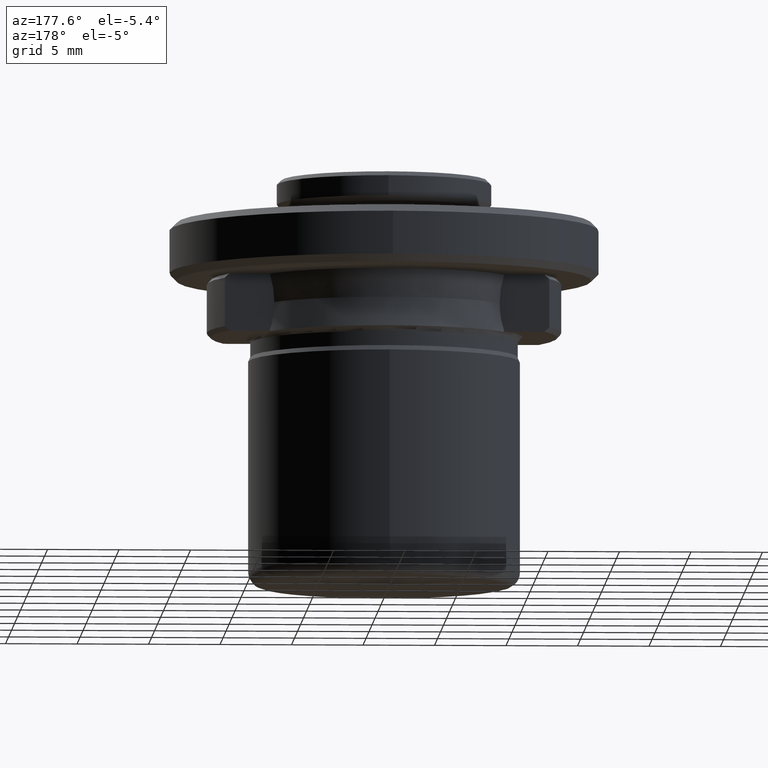
[diagram: clean part render]
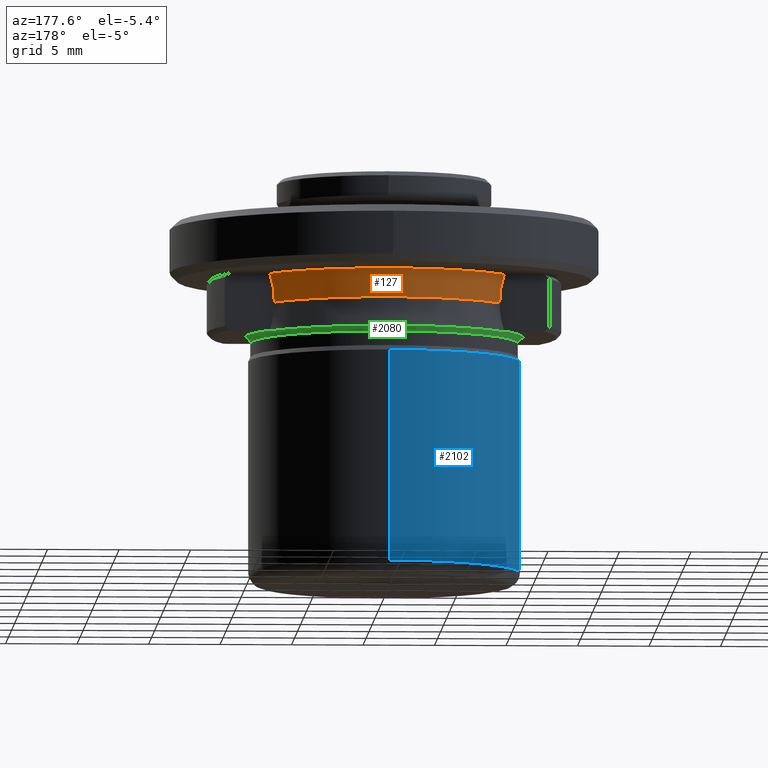
[diagram: same view with three faces highlighted in distinct colors, each labeled with its STEP entity id]
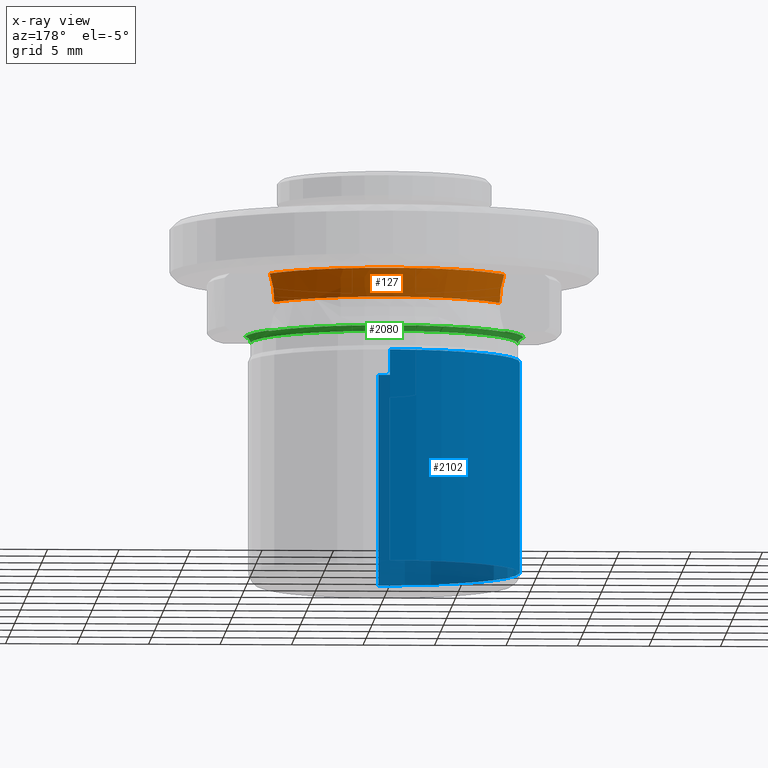
[diagram: x-ray of the same camera — body ghosted, the three highlighted faces saturated]
A machine part, auxiliary view with three faces highlighted in distinct colors.
The next image is the same camera in x-ray (body ghosted, the three faces saturated) — at least one of them is partly hidden behind the body in this view.
Their STEP definitions:

[orange] entity #127 — the highlighted face is a freeform B-spline surface patch.
#9 = CARTESIAN_POINT ( 'NONE',  ( 8.196975814546172900, 5.000000003314001500, 8.750000000509832200 ) ) ;
#11 = VERTEX_POINT ( 'NONE', #199 ) ;
#127 = ADVANCED_FACE ( 'NONE', ( #1291 ), #490, .F. ) ;
#130 = CARTESIAN_POINT ( 'NONE',  ( -7.877112415001547200, 5.000000000000000000, 7.429352586293858500 ) ) ;
#199 = CARTESIAN_POINT ( 'NONE',  ( 8.196975814546172900, 5.000000003314001500, 8.750000000509832200 ) ) ;
#203 = CARTESIAN_POINT ( 'NONE',  ( 7.877112416672512800, 4.999999997048595500, 6.749999999319589600 ) ) ;
#282 = ORIENTED_EDGE ( 'NONE', *, *, #1790, .T. ) ;
#305 = CARTESIAN_POINT ( 'NONE',  ( 8.056392546000001400, 4.779540785000001800, 6.001249375000001300 ) ) ;
#345 = B_SPLINE_CURVE_WITH_KNOTS ( 'NONE', 3,
 ( #969, #1137, #130, #1307 ),
 .UNSPECIFIED., .F., .F.,
 ( 4, 4 ),
 ( 5.980985295301940700E-013, 0.002031991267083052600 ),
 .UNSPECIFIED. ) ;
#369 = ORIENTED_EDGE ( 'NONE', *, *, #446, .F. ) ;
#438 = CARTESIAN_POINT ( 'NONE',  ( -7.877112416672511100, 4.999999997048597300, 6.749999999319589600 ) ) ;
#446 = EDGE_CURVE ( 'NONE', #990, #717, #654, .T. ) ;
#490 =( BOUNDED_SURFACE ( )  B_SPLINE_SURFACE ( 3, 3, ( 
 ( #305, #1250, #1640, #510 ),
 ( #1089, #1702, #986, #1042 ),
 ( #538, #1677, #1717, #1544 ),
 ( #1861, #2058, #2173, #528 ) ),
 .UNSPECIFIED., .F., .F., .F. ) 
 B_SPLINE_SURFACE_WITH_KNOTS ( ( 4, 4 ),
 ( 4, 4 ),
 ( 0.0000000000000000000, 1.000000000000000000 ),
 ( 0.0000000000000000000, 1.000000000000000000 ),
 .UNSPECIFIED. ) 
 GEOMETRIC_REPRESENTATION_ITEM ( )  RATIONAL_B_SPLINE_SURFACE ( (
 ( 1.000000000000000000, 0.6734850439786470600, 0.6734850439786470600, 1.000000000000000000),
 ( 0.9816814431953340100, 0.6611477699434310500, 0.6611477699434310500, 0.9816814431953340100),
 ( 0.9816814431953340100, 0.6611477699434310500, 0.6611477699434310500, 0.9816814431953340100),
 ( 1.000000000000000000, 0.6734850439786470600, 0.6734850439786470600, 1.000000000000000000) ) ) 
 REPRESENTATION_ITEM ( '' )  SURFACE ( )  );
#510 = CARTESIAN_POINT ( 'NONE',  ( -8.056392546000001400, 4.779540785000001800, 6.001249375000001300 ) ) ;
#528 = CARTESIAN_POINT ( 'NONE',  ( -8.460519829000002500, 5.019293605000001400, 9.461645811000002100 ) ) ;
#538 = CARTESIAN_POINT ( 'NONE',  ( 8.091804077999999100, 4.800549054000000200, 8.356088229000002700 ) ) ;
#541 = B_SPLINE_CURVE_WITH_KNOTS ( 'NONE', 3,
 ( #2049, #867, #1205, #203 ),
 .UNSPECIFIED., .F., .F.,
 ( 4, 4 ),
 ( 2.261502033258373100E-013, 0.002031991267083054800 ),
 .UNSPECIFIED. ) ;
#629 = EDGE_LOOP ( 'NONE', ( #369, #1445, #282, #1594 ) ) ;
#654 =( BOUNDED_CURVE ( )  B_SPLINE_CURVE ( 3, ( #438, #790, #1267, #783 ),
 .UNSPECIFIED., .F., .F. ) 
 B_SPLINE_CURVE_WITH_KNOTS ( ( 4, 4 ),
 ( 0.0000000000000000000, 1.000000000000000000 ),
 .UNSPECIFIED. ) 
 CURVE ( )  GEOMETRIC_REPRESENTATION_ITEM ( )  RATIONAL_B_SPLINE_CURVE ( ( 0.9738585525977352400, 0.6725504043378097700, 0.6725504043378099900, 0.9738585525977354600 ) ) 
 REPRESENTATION_ITEM ( '' )  );
#698 = VERTEX_POINT ( 'NONE', #1146 ) ;
#717 = VERTEX_POINT ( 'NONE', #1487 ) ;
#783 = CARTESIAN_POINT ( 'NONE',  ( 7.877112416672512800, 4.999999997048595500, 6.749999999319589600 ) ) ;
#790 = CARTESIAN_POINT ( 'NONE',  ( -3.802041327538604200, 11.41995861482380700, 6.749999999011319800 ) ) ;
#867 = CARTESIAN_POINT ( 'NONE',  ( 7.987554438062074000, 5.000000000000002700, 8.103832764914706400 ) ) ;
#919 = EDGE_CURVE ( 'NONE', #11, #717, #541, .T. ) ;
#955 =( BOUNDED_CURVE ( )  B_SPLINE_CURVE ( 3, ( #1848, #1005, #1016, #9 ),
 .UNSPECIFIED., .F., .F. ) 
 B_SPLINE_CURVE_WITH_KNOTS ( ( 4, 4 ),
 ( 0.0000000000000000000, 0.01955758531167859200 ),
 .UNSPECIFIED. ) 
 CURVE ( )  GEOMETRIC_REPRESENTATION_ITEM ( )  RATIONAL_B_SPLINE_CURVE ( ( 0.9839124906199209200, 0.6695507562702077700, 0.6695507562702069900, 0.9839124906199190300 ) ) 
 REPRESENTATION_ITEM ( '' )  );
#969 = CARTESIAN_POINT ( 'NONE',  ( -8.196975812969103700, 5.000000000442648600, 8.750000000509832200 ) ) ;
#986 = CARTESIAN_POINT ( 'NONE',  ( -3.937024453000000300, 11.49113273000000000, 7.181098635999998900 ) ) ;
#990 = VERTEX_POINT ( 'NONE', #1404 ) ;
#1005 = CARTESIAN_POINT ( 'NONE',  ( -4.015183221453917800, 11.85561054469040200, 8.750000000000001800 ) ) ;
#1016 = CARTESIAN_POINT ( 'NONE',  ( 4.015183221453870700, 11.85561054469042100, 8.750000000000001800 ) ) ;
#1042 = CARTESIAN_POINT ( 'NONE',  ( -7.954581259999998500, 4.719140153000001400, 7.181098635999999800 ) ) ;
#1089 = CARTESIAN_POINT ( 'NONE',  ( 7.954581259999998500, 4.719140153000001400, 7.181098635999999800 ) ) ;
#1137 = CARTESIAN_POINT ( 'NONE',  ( -7.987554438100409500, 5.000000000000000000, 8.103832765032985100 ) ) ;
#1146 = CARTESIAN_POINT ( 'NONE',  ( -8.196975812969103700, 5.000000000442648600, 8.750000000509832200 ) ) ;
#1205 = CARTESIAN_POINT ( 'NONE',  ( 7.877112415001549000, 5.000000000000003600, 7.429352586418210600 ) ) ;
#1250 = CARTESIAN_POINT ( 'NONE',  ( 3.987414726000000400, 11.63820860699999700, 6.001249375000002200 ) ) ;
#1267 = CARTESIAN_POINT ( 'NONE',  ( 3.802041327538610900, 11.41995861482380400, 6.749999999011321500 ) ) ;
#1291 = FACE_OUTER_BOUND ( 'NONE', #629, .T. ) ;
#1307 = CARTESIAN_POINT ( 'NONE',  ( -7.877112416672511100, 4.999999997048597300, 6.749999999319589600 ) ) ;
#1329 = EDGE_CURVE ( 'NONE', #698, #990, #345, .T. ) ;
#1404 = CARTESIAN_POINT ( 'NONE',  ( -7.877112416672511100, 4.999999997048597300, 6.749999999319589600 ) ) ;
#1445 = ORIENTED_EDGE ( 'NONE', *, *, #1329, .F. ) ;
#1487 = CARTESIAN_POINT ( 'NONE',  ( 7.877112416672512800, 4.999999997048595500, 6.749999999319589600 ) ) ;
#1544 = CARTESIAN_POINT ( 'NONE',  ( -8.091804077999999100, 4.800549054000000200, 8.356088229000002700 ) ) ;
#1594 = ORIENTED_EDGE ( 'NONE', *, *, #919, .T. ) ;
#1640 = CARTESIAN_POINT ( 'NONE',  ( -3.987414726000000400, 11.63820860699999700, 6.001249375000002200 ) ) ;
#1677 = CARTESIAN_POINT ( 'NONE',  ( 4.004941237999998900, 11.68936385900000000, 8.356088229000002700 ) ) ;
#1702 = CARTESIAN_POINT ( 'NONE',  ( 3.937024453000000300, 11.49113273000000000, 7.181098635999998900 ) ) ;
#1717 = CARTESIAN_POINT ( 'NONE',  ( -4.004941237999998900, 11.68936385900000000, 8.356088229000002700 ) ) ;
#1790 = EDGE_CURVE ( 'NONE', #698, #11, #955, .T. ) ;
#1848 = CARTESIAN_POINT ( 'NONE',  ( -8.196975812969103700, 5.000000000442648600, 8.750000000509832200 ) ) ;
#1861 = CARTESIAN_POINT ( 'NONE',  ( 8.460519829000002500, 5.019293605000001400, 9.461645811000002100 ) ) ;
#2049 = CARTESIAN_POINT ( 'NONE',  ( 8.196975814546172900, 5.000000003314001500, 8.750000000509832200 ) ) ;
#2058 = CARTESIAN_POINT ( 'NONE',  ( 4.187432670999998900, 12.22200806699999900, 9.461645811000002100 ) ) ;
#2173 = CARTESIAN_POINT ( 'NONE',  ( -4.187432670999998900, 12.22200806699999900, 9.461645811000002100 ) ) ;

[blue] entity #2102 — the highlighted cylindrical surface (partial cylindrical patch) has radius 9.5 mm, axis along (0, -0, 1).
#27 = CIRCLE ( 'NONE', #1386, 9.500000000000000000 ) ;
#52 = AXIS2_PLACEMENT_3D ( 'NONE', #1679, #673, #1859 ) ;
#67 = AXIS2_PLACEMENT_3D ( 'NONE', #336, #128, #1003 ) ;
#111 = AXIS2_PLACEMENT_3D ( 'NONE', #753, #929, #1084 ) ;
#122 = CARTESIAN_POINT ( 'NONE',  ( 1.163414459189985500E-015, 9.500000000000000000, 3.030000000000088200 ) ) ;
#128 = DIRECTION ( 'NONE',  ( 0.0000000000000000000, 0.0000000000000000000, -1.000000000000000000 ) ) ;
#173 = ORIENTED_EDGE ( 'NONE', *, *, #1507, .T. ) ;
#311 = VERTEX_POINT ( 'NONE', #122 ) ;
#321 = VERTEX_POINT ( 'NONE', #396 ) ;
#336 = CARTESIAN_POINT ( 'NONE',  ( 0.0000000000000000000, 0.0000000000000000000, 3.030000000000088200 ) ) ;
#396 = CARTESIAN_POINT ( 'NONE',  ( 0.0000000000000000000, -9.500000000000000000, -11.75000000000000000 ) ) ;
#402 = CARTESIAN_POINT ( 'NONE',  ( 0.0000000000000000000, 0.0000000000000000000, 3.030000000000088200 ) ) ;
#404 = VECTOR ( 'NONE', #905, 1000.000000000000000 ) ;
#405 = EDGE_CURVE ( 'NONE', #1431, #311, #1743, .T. ) ;
#468 = VERTEX_POINT ( 'NONE', #908 ) ;
#472 = CARTESIAN_POINT ( 'NONE',  ( 0.0000000000000000000, 2.364620801796248300E-016, -11.75000000000000000 ) ) ;
#523 = AXIS2_PLACEMENT_3D ( 'NONE', #472, #1651, #646 ) ;
#564 = CARTESIAN_POINT ( 'NONE',  ( 1.163414459189985500E-015, 9.500000000000000000, -6.570177872000000400 ) ) ;
#573 = DIRECTION ( 'NONE',  ( -1.000000000000000000, 0.0000000000000000000, -9.312726028928122700E-015 ) ) ;
#582 = VERTEX_POINT ( 'NONE', #774 ) ;
#646 = DIRECTION ( 'NONE',  ( 1.000000000000000000, 0.0000000000000000000, 0.0000000000000000000 ) ) ;
#673 = DIRECTION ( 'NONE',  ( 0.0000000000000000000, 0.0000000000000000000, 1.000000000000000000 ) ) ;
#748 = CYLINDRICAL_SURFACE ( 'NONE', #111, 9.500000000000000000 ) ;
#753 = CARTESIAN_POINT ( 'NONE',  ( 0.0000000000000000000, 0.0000000000000000000, -6.570177872000000400 ) ) ;
#774 = CARTESIAN_POINT ( 'NONE',  ( -9.500000000000001800, 1.399876539369610000E-015, -11.75000000000000000 ) ) ;
#905 = DIRECTION ( 'NONE',  ( 0.0000000000000000000, -4.565061778886334800E-017, 1.000000000000000000 ) ) ;
#908 = CARTESIAN_POINT ( 'NONE',  ( 1.163414459189985500E-015, 9.500000000000000000, -11.75000000000000000 ) ) ;
#929 = DIRECTION ( 'NONE',  ( 0.0000000000000000000, -4.565061778886334800E-017, 1.000000000000000000 ) ) ;
#1003 = DIRECTION ( 'NONE',  ( -1.000000000000000000, 0.0000000000000000000, -9.312726028928122700E-015 ) ) ;
#1063 = EDGE_CURVE ( 'NONE', #468, #311, #1808, .T. ) ;
#1084 = DIRECTION ( 'NONE',  ( 0.0000000000000000000, -1.000000000000000000, 0.0000000000000000000 ) ) ;
#1118 = EDGE_CURVE ( 'NONE', #582, #321, #1196, .T. ) ;
#1173 = CARTESIAN_POINT ( 'NONE',  ( 0.0000000000000000000, -9.500000000000000000, -6.570177872000000400 ) ) ;
#1196 = CIRCLE ( 'NONE', #52, 9.500000000000000000 ) ;
#1319 = CARTESIAN_POINT ( 'NONE',  ( -9.499999999999957400, 0.0000000000000000000, 3.030000000000088200 ) ) ;
#1326 = LINE ( 'NONE', #1173, #1660 ) ;
#1338 = DIRECTION ( 'NONE',  ( 0.0000000000000000000, -4.565061778886334800E-017, 1.000000000000000000 ) ) ;
#1366 = VERTEX_POINT ( 'NONE', #1970 ) ;
#1386 = AXIS2_PLACEMENT_3D ( 'NONE', #402, #1574, #573 ) ;
#1431 = VERTEX_POINT ( 'NONE', #1319 ) ;
#1501 = CIRCLE ( 'NONE', #523, 9.500000000000000000 ) ;
#1503 = EDGE_LOOP ( 'NONE', ( #2066, #1649, #1856, #173, #1548, #2050 ) ) ;
#1507 = EDGE_CURVE ( 'NONE', #321, #1366, #1326, .T. ) ;
#1548 = ORIENTED_EDGE ( 'NONE', *, *, #2075, .T. ) ;
#1574 = DIRECTION ( 'NONE',  ( 0.0000000000000000000, 0.0000000000000000000, -1.000000000000000000 ) ) ;
#1642 = FACE_OUTER_BOUND ( 'NONE', #1503, .T. ) ;
#1649 = ORIENTED_EDGE ( 'NONE', *, *, #1684, .T. ) ;
#1651 = DIRECTION ( 'NONE',  ( 0.0000000000000000000, 0.0000000000000000000, 1.000000000000000000 ) ) ;
#1660 = VECTOR ( 'NONE', #1338, 1000.000000000000000 ) ;
#1679 = CARTESIAN_POINT ( 'NONE',  ( 0.0000000000000000000, 2.364620801796248300E-016, -11.75000000000000000 ) ) ;
#1684 = EDGE_CURVE ( 'NONE', #468, #582, #1501, .T. ) ;
#1743 = CIRCLE ( 'NONE', #67, 9.500000000000000000 ) ;
#1808 = LINE ( 'NONE', #564, #404 ) ;
#1856 = ORIENTED_EDGE ( 'NONE', *, *, #1118, .T. ) ;
#1859 = DIRECTION ( 'NONE',  ( 1.000000000000000000, 0.0000000000000000000, 0.0000000000000000000 ) ) ;
#1970 = CARTESIAN_POINT ( 'NONE',  ( 0.0000000000000000000, -9.500000000000000000, 3.030000000000088200 ) ) ;
#2050 = ORIENTED_EDGE ( 'NONE', *, *, #405, .T. ) ;
#2066 = ORIENTED_EDGE ( 'NONE', *, *, #1063, .F. ) ;
#2075 = EDGE_CURVE ( 'NONE', #1366, #1431, #27, .T. ) ;
#2102 = ADVANCED_FACE ( 'NONE', ( #1642 ), #748, .T. ) ;

[green] entity #2080 — the highlighted toroidal blend (fillet) surface has major radius 9.75 mm and minor (blend) radius 0.4 mm.
#33 = VERTEX_POINT ( 'NONE', #1376 ) ;
#82 = EDGE_CURVE ( 'NONE', #911, #1298, #388, .T. ) ;
#138 = CARTESIAN_POINT ( 'NONE',  ( 0.0000000000000000000, 0.0000000000000000000, 4.724235039728594800 ) ) ;
#160 = EDGE_CURVE ( 'NONE', #452, #33, #341, .T. ) ;
#168 = ORIENTED_EDGE ( 'NONE', *, *, #1648, .F. ) ;
#172 = DIRECTION ( 'NONE',  ( 0.0000000000000000000, -1.000000000000000000, 0.0000000000000000000 ) ) ;
#289 = CARTESIAN_POINT ( 'NONE',  ( 8.259008784446502100, 5.000000000000000000, 4.741517755132616000 ) ) ;
#308 = AXIS2_PLACEMENT_3D ( 'NONE', #138, #1315, #309 ) ;
#309 = DIRECTION ( 'NONE',  ( 0.0000000000000000000, -1.000000000000000000, 9.026779161851814800E-017 ) ) ;
#341 = CIRCLE ( 'NONE', #1605, 9.750000000146760800 ) ;
#384 = AXIS2_PLACEMENT_3D ( 'NONE', #1864, #853, #2033 ) ;
#388 = CIRCLE ( 'NONE', #822, 0.4000000002154814300 ) ;
#409 = TOROIDAL_SURFACE ( 'NONE', #1610, 9.750000000326270600, 0.4000000002154814300 ) ;
#436 = B_SPLINE_CURVE_WITH_KNOTS ( 'NONE', 3,
 ( #1450, #289, #1620, #614 ),
 .UNSPECIFIED., .F., .F.,
 ( 4, 4 ),
 ( 0.0000000000000000000, 0.0001669516242611762100 ),
 .UNSPECIFIED. ) ;
#452 = VERTEX_POINT ( 'NONE', #2093 ) ;
#462 = CIRCLE ( 'NONE', #384, 9.350000000108330800 ) ;
#516 = DIRECTION ( 'NONE',  ( -0.0000000000000000000, 0.0000000000000000000, -1.000000000000000000 ) ) ;
#534 = DIRECTION ( 'NONE',  ( -1.000000000000000000, 1.224646799147352200E-016, 0.0000000000000000000 ) ) ;
#567 = EDGE_CURVE ( 'NONE', #1065, #1645, #1624, .T. ) ;
#609 = AXIS2_PLACEMENT_3D ( 'NONE', #1525, #516, #1696 ) ;
#614 = CARTESIAN_POINT ( 'NONE',  ( 8.370334521264656000, 4.999999999999999100, 4.749999999889213100 ) ) ;
#771 = VERTEX_POINT ( 'NONE', #1505 ) ;
#791 = EDGE_CURVE ( 'NONE', #452, #1011, #1950, .T. ) ;
#820 = DIRECTION ( 'NONE',  ( -0.0000000000000000000, 0.0000000000000000000, 1.000000000000000000 ) ) ;
#822 = AXIS2_PLACEMENT_3D ( 'NONE', #1231, #1183, #534 ) ;
#853 = DIRECTION ( 'NONE',  ( 0.0000000000000000000, -0.0000000000000000000, -1.000000000000000000 ) ) ;
#895 = ORIENTED_EDGE ( 'NONE', *, *, #82, .F. ) ;
#896 = ORIENTED_EDGE ( 'NONE', *, *, #791, .T. ) ;
#911 = VERTEX_POINT ( 'NONE', #1029 ) ;
#938 = EDGE_LOOP ( 'NONE', ( #895, #1162, #2115, #168, #1943, #1430, #896, #1869 ) ) ;
#960 = CARTESIAN_POINT ( 'NONE',  ( -9.350000000108330800, 1.145044757216041900E-015, 4.349999999879580400 ) ) ;
#1011 = VERTEX_POINT ( 'NONE', #1741 ) ;
#1029 = CARTESIAN_POINT ( 'NONE',  ( -9.750000000561367800, 1.194030629237417500E-015, 4.749999999889213100 ) ) ;
#1065 = VERTEX_POINT ( 'NONE', #1904 ) ;
#1100 = CARTESIAN_POINT ( 'NONE',  ( -8.314009201291112200, 5.000000001154024400, 4.749999998633676900 ) ) ;
#1138 = EDGE_CURVE ( 'NONE', #1298, #1011, #462, .T. ) ;
#1148 = EDGE_CURVE ( 'NONE', #911, #1065, #1985, .T. ) ;
#1162 = ORIENTED_EDGE ( 'NONE', *, *, #1148, .T. ) ;
#1182 = CARTESIAN_POINT ( 'NONE',  ( 9.750000000326270600, 0.0000000000000000000, 4.349999999673730900 ) ) ;
#1183 = DIRECTION ( 'NONE',  ( 1.224646799147353200E-016, 1.000000000000000000, 0.0000000000000000000 ) ) ;
#1231 = CARTESIAN_POINT ( 'NONE',  ( -9.750000000326270600, 1.194030629208625900E-015, 4.349999999673730900 ) ) ;
#1243 = CARTESIAN_POINT ( 'NONE',  ( 0.0000000000000000000, 0.0000000000000000000, 4.349999999673730900 ) ) ;
#1270 = CARTESIAN_POINT ( 'NONE',  ( -8.370334521211765000, 4.999999999999999100, 4.749999999889213100 ) ) ;
#1287 = EDGE_CURVE ( 'NONE', #771, #33, #436, .T. ) ;
#1298 = VERTEX_POINT ( 'NONE', #960 ) ;
#1312 = FACE_OUTER_BOUND ( 'NONE', #938, .T. ) ;
#1315 = DIRECTION ( 'NONE',  ( 0.0000000000000000000, 9.026779162063304700E-017, 1.000000000000000000 ) ) ;
#1349 = DIRECTION ( 'NONE',  ( 0.0000000000000000000, 0.0000000000000000000, -1.000000000000000000 ) ) ;
#1376 = CARTESIAN_POINT ( 'NONE',  ( 8.370334521264656000, 4.999999999999999100, 4.749999999889213100 ) ) ;
#1430 = ORIENTED_EDGE ( 'NONE', *, *, #160, .F. ) ;
#1433 = CARTESIAN_POINT ( 'NONE',  ( -8.205382973227298000, 5.000000000000000900, 4.724235039559845400 ) ) ;
#1450 = CARTESIAN_POINT ( 'NONE',  ( 8.205382974800770100, 5.000000000000000900, 4.724235040159770800 ) ) ;
#1505 = CARTESIAN_POINT ( 'NONE',  ( 8.205382974800770100, 5.000000000000000900, 4.724235040159770800 ) ) ;
#1525 = CARTESIAN_POINT ( 'NONE',  ( 0.0000000000000000000, 0.0000000000000000000, 4.749999999889213100 ) ) ;
#1605 = AXIS2_PLACEMENT_3D ( 'NONE', #1828, #820, #2164 ) ;
#1610 = AXIS2_PLACEMENT_3D ( 'NONE', #1243, #1740, #1751 ) ;
#1620 = CARTESIAN_POINT ( 'NONE',  ( 8.314009200938841100, 5.000000000000000000, 4.749999999677823900 ) ) ;
#1624 = B_SPLINE_CURVE_WITH_KNOTS ( 'NONE', 3,
 ( #1270, #1100, #2108, #1433 ),
 .UNSPECIFIED., .F., .F.,
 ( 4, 4 ),
 ( 0.0000000000000000000, 0.0001669516244480452800 ),
 .UNSPECIFIED. ) ;
#1645 = VERTEX_POINT ( 'NONE', #1973 ) ;
#1648 = EDGE_CURVE ( 'NONE', #771, #1645, #1898, .T. ) ;
#1696 = DIRECTION ( 'NONE',  ( 1.000000000000000000, 0.0000000000000000000, 0.0000000000000000000 ) ) ;
#1740 = DIRECTION ( 'NONE',  ( -0.0000000000000000000, 0.0000000000000000000, 1.000000000000000000 ) ) ;
#1741 = CARTESIAN_POINT ( 'NONE',  ( 9.350000000108330800, 0.0000000000000000000, 4.349999999879580400 ) ) ;
#1751 = DIRECTION ( 'NONE',  ( 1.000000000000000000, 0.0000000000000000000, 0.0000000000000000000 ) ) ;
#1828 = CARTESIAN_POINT ( 'NONE',  ( 0.0000000000000000000, 0.0000000000000000000, 4.749999999889213100 ) ) ;
#1864 = CARTESIAN_POINT ( 'NONE',  ( 0.0000000000000000000, 0.0000000000000000000, 4.349999999879580400 ) ) ;
#1869 = ORIENTED_EDGE ( 'NONE', *, *, #1138, .F. ) ;
#1898 = CIRCLE ( 'NONE', #308, 9.608762133607653400 ) ;
#1904 = CARTESIAN_POINT ( 'NONE',  ( -8.370334521211765000, 4.999999999999999100, 4.749999999889213100 ) ) ;
#1943 = ORIENTED_EDGE ( 'NONE', *, *, #1287, .T. ) ;
#1950 = CIRCLE ( 'NONE', #2051, 0.4000000002154814300 ) ;
#1973 = CARTESIAN_POINT ( 'NONE',  ( -8.205382973227298000, 5.000000000000000900, 4.724235039559845400 ) ) ;
#1985 = CIRCLE ( 'NONE', #609, 9.750000000796468700 ) ;
#2033 = DIRECTION ( 'NONE',  ( -1.000000000000000000, 0.0000000000000000000, 0.0000000000000000000 ) ) ;
#2051 = AXIS2_PLACEMENT_3D ( 'NONE', #1182, #172, #1349 ) ;
#2080 = ADVANCED_FACE ( 'NONE', ( #1312 ), #409, .F. ) ;
#2093 = CARTESIAN_POINT ( 'NONE',  ( 9.750000000236514800, 0.0000000000000000000, 4.749999999889213100 ) ) ;
#2108 = CARTESIAN_POINT ( 'NONE',  ( -8.259008784567335200, 5.000000000000000000, 4.741517755171558200 ) ) ;
#2115 = ORIENTED_EDGE ( 'NONE', *, *, #567, .T. ) ;
#2164 = DIRECTION ( 'NONE',  ( 1.000000000000000000, 0.0000000000000000000, 0.0000000000000000000 ) ) ;